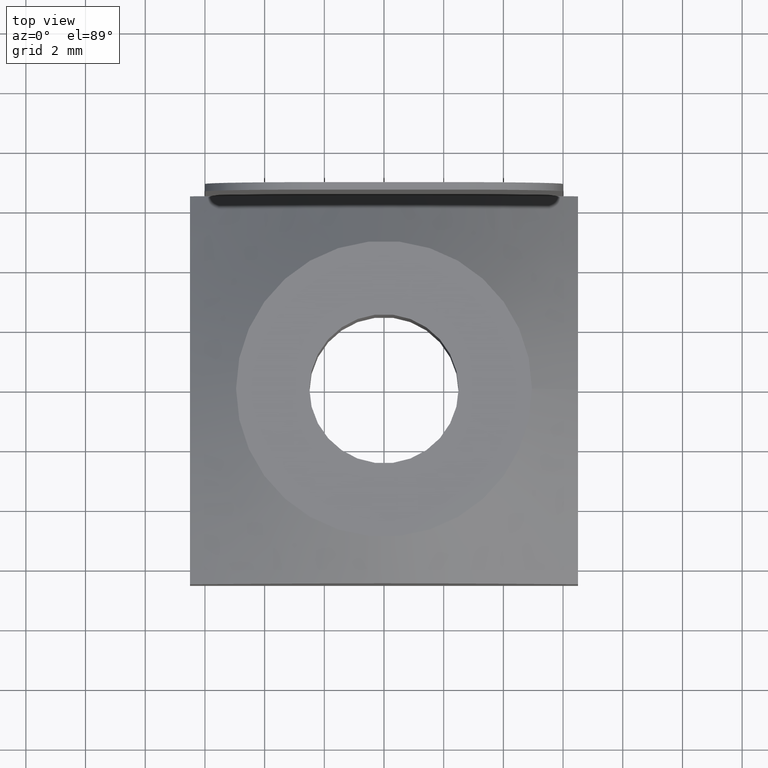
[diagram: clean part render]
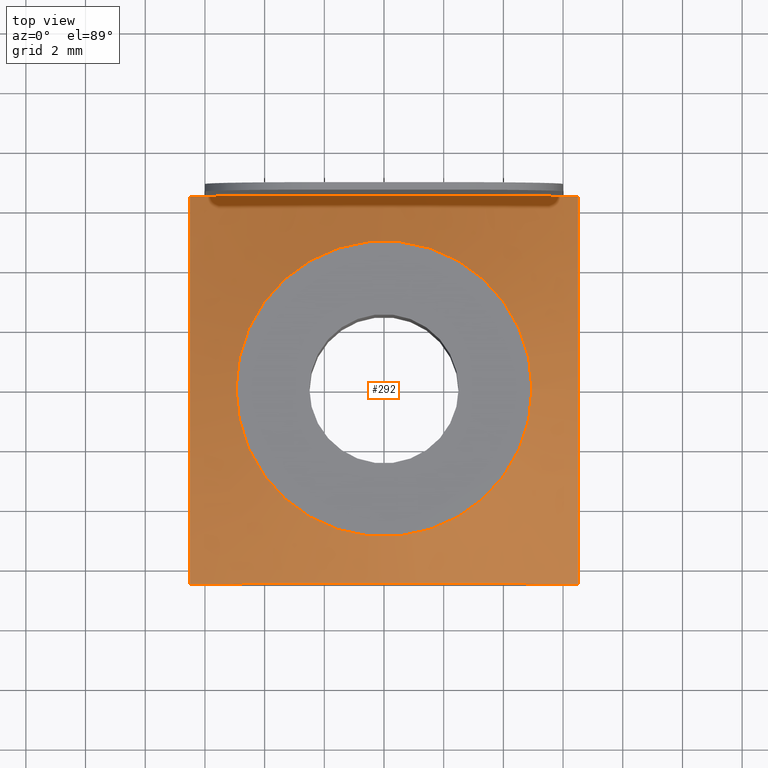
[diagram: same view with one face highlighted and labeled with its STEP entity id]
A machine part, top view. The second image highlights one B-rep face of the part: STEP entity #292.
In plain terms, the highlighted face is a freeform B-spline surface patch.
Its self-contained STEP definition (entity closure, byte-faithful):
#17=CARTESIAN_POINT('',(-6.499999999973852,-6.499999999974079,3.034437679604906));
#18=VERTEX_POINT('',#17);
#25=CARTESIAN_POINT('',(-6.499999999973852,6.499999999974079,3.034437679605066));
#26=VERTEX_POINT('',#25);
#27=CARTESIAN_POINT('',(-6.499999999974079,-6.499999999974079,3.034437679604906));
#28=CARTESIAN_POINT('',(-6.499999999974079,-5.963475184198160,3.300082650377658));
#29=CARTESIAN_POINT('',(-6.499999999974307,-4.990047889132711,3.753273584885370));
#30=CARTESIAN_POINT('',(-6.499999999973625,-3.581020279305903,4.294954268033969));
#31=CARTESIAN_POINT('',(-6.499999999973397,-2.325183673445281,4.659603356991861));
#32=CARTESIAN_POINT('',(-6.499999999974307,-1.114697758100192,4.877442321284693));
#33=CARTESIAN_POINT('',(-6.499999999972943,0.091791976900822,4.946072576401956));
#34=CARTESIAN_POINT('',(-6.499999999977263,1.288091550248737,4.855365513273265));
#35=CARTESIAN_POINT('',(-6.499999999960892,2.551471572318405,4.605479998874939));
#36=CARTESIAN_POINT('',(-6.499999999977263,3.827364189698528,4.209600242583047));
#37=CARTESIAN_POINT('',(-6.499999999973170,5.174177651177615,3.668900488673288));
#38=CARTESIAN_POINT('',(-6.499999999973852,6.048409974866900,3.258029609546425));
#39=CARTESIAN_POINT('',(-6.499999999973852,6.499999999974079,3.034437679605066));
#40=B_SPLINE_CURVE_WITH_KNOTS('',3,(#27,#28,#29,#30,#31,#32,#33,#34,#35,#36,#37,#38,#39),.UNSPECIFIED.,.F.,.U.,(4,1,1,1,1,1,1,1,1,1,4),(0.0,1.796348609622032,3.219266909664040,4.525760464110747,5.714993134358735,6.903296288721289,8.143598724463887,9.306388059167453,10.761381849058354,12.146239828317164,13.658133343956399),.UNSPECIFIED.);
#41=EDGE_CURVE('',#18,#26,#40,.T.);
#65=CARTESIAN_POINT('',(6.499999999974079,-6.499999999974079,3.034437679604906));
#66=VERTEX_POINT('',#65);
#73=CARTESIAN_POINT('',(6.499999999974079,-6.499999999974079,3.034437679604906));
#74=CARTESIAN_POINT('',(5.963475184197932,-6.499999999974079,3.300082650377685));
#75=CARTESIAN_POINT('',(4.990047889131347,-6.499999999974534,3.753273584885145));
#76=CARTESIAN_POINT('',(3.581020279306358,-6.499999999973625,4.294954268034343));
#77=CARTESIAN_POINT('',(2.325183673444599,-6.499999999974989,4.659603356991499));
#78=CARTESIAN_POINT('',(1.114697758099510,-6.499999999973170,4.877442321284664));
#79=CARTESIAN_POINT('',(-0.091791976900140,-6.499999999974989,4.946072576401746));
#80=CARTESIAN_POINT('',(-1.288091550251238,-6.499999999977263,4.855365513273293));
#81=CARTESIAN_POINT('',(-2.551471572318178,-6.499999999962711,4.605479998874193));
#82=CARTESIAN_POINT('',(-3.827364189701029,-6.499999999977717,4.209600242582467));
#83=CARTESIAN_POINT('',(-5.174177651178525,-6.499999999973625,3.668900488673009));
#84=CARTESIAN_POINT('',(-6.048409974867354,-6.499999999974079,3.258029609546086));
#85=CARTESIAN_POINT('',(-6.499999999974079,-6.499999999974079,3.034437679604906));
#86=B_SPLINE_CURVE_WITH_KNOTS('',3,(#73,#74,#75,#76,#77,#78,#79,#80,#81,#82,#83,#84,#85),.UNSPECIFIED.,.F.,.U.,(4,1,1,1,1,1,1,1,1,1,4),(0.0,1.796348609622239,3.219266909664066,4.525760464110903,5.714993134359137,6.903296288721684,8.143598724464722,9.306388059168363,10.761381849059740,12.146239828318263,13.658133343956333),.UNSPECIFIED.);
#87=EDGE_CURVE('',#66,#18,#86,.T.);
#106=CARTESIAN_POINT('',(6.499999999974079,6.499999999974079,3.034437679604906));
#107=VERTEX_POINT('',#106);
#114=CARTESIAN_POINT('',(6.499999999974079,0.0,4.919668161812596));
#115=VERTEX_POINT('',#114);
#116=CARTESIAN_POINT('',(6.499999999974079,6.499999999974079,3.034437679604906));
#117=CARTESIAN_POINT('',(6.499999999974079,5.882877524653850,3.339988284347234));
#118=CARTESIAN_POINT('',(6.499999999974534,4.809413192198008,3.835425012968807));
#119=CARTESIAN_POINT('',(6.499999999973852,3.186651324770082,4.430488239795752));
#120=CARTESIAN_POINT('',(6.499999999974989,1.644250270507200,4.819853950623344));
#121=CARTESIAN_POINT('',(6.499999999974079,0.548660503574865,4.919668161812595));
#122=CARTESIAN_POINT('',(6.499999999974079,0.0,4.919668161812595));
#123=B_SPLINE_CURVE_WITH_KNOTS('',3,(#116,#117,#118,#119,#120,#121,#122),.UNSPECIFIED.,.F.,.U.,(4,1,1,1,4),(0.0,2.066340973610342,3.543609594805800,5.181100455068718,6.829066620924860),.UNSPECIFIED.);
#124=EDGE_CURVE('',#107,#115,#123,.T.);
#126=CARTESIAN_POINT('',(6.499999999974079,0.0,4.919668161812595));
#127=CARTESIAN_POINT('',(6.499999999974079,-0.548660503574865,4.919668161812595));
#128=CARTESIAN_POINT('',(6.499999999974762,-1.644250270504926,4.819853950623344));
#129=CARTESIAN_POINT('',(6.499999999973852,-3.186651324770082,4.430488239795752));
#130=CARTESIAN_POINT('',(6.499999999974534,-4.809413192196644,3.835425012968807));
#131=CARTESIAN_POINT('',(6.499999999974079,-5.882877524653850,3.339988284347234));
#132=CARTESIAN_POINT('',(6.499999999974079,-6.499999999974079,3.034437679604906));
#133=B_SPLINE_CURVE_WITH_KNOTS('',3,(#126,#127,#128,#129,#130,#131,#132),.UNSPECIFIED.,.F.,.U.,(4,1,1,1,4),(0.0,1.647966165856141,3.285457026119058,4.762725647314515,6.829066620924857),.UNSPECIFIED.);
#134=EDGE_CURVE('',#115,#66,#133,.T.);
#146=CARTESIAN_POINT('',(-6.499999999973852,6.499999999974079,3.034437679605066));
#147=CARTESIAN_POINT('',(-6.048409974867354,6.499999999974079,3.258029609546206));
#148=CARTESIAN_POINT('',(-5.174177651177615,6.499999999972715,3.668900488673024));
#149=CARTESIAN_POINT('',(-3.827364189701939,6.499999999976353,4.209600242582472));
#150=CARTESIAN_POINT('',(-2.551471572317269,6.499999999962711,4.605479998874186));
#151=CARTESIAN_POINT('',(-1.288091550251011,6.499999999977263,4.855365513273293));
#152=CARTESIAN_POINT('',(-0.091791976899913,6.499999999974534,4.946072576401746));
#153=CARTESIAN_POINT('',(1.114697758099283,6.499999999973170,4.877442321284664));
#154=CARTESIAN_POINT('',(2.325183673445054,6.499999999974989,4.659603356991500));
#155=CARTESIAN_POINT('',(3.581020279306813,6.499999999974079,4.294954268034344));
#156=CARTESIAN_POINT('',(4.990047889131802,6.499999999974534,3.753273584885147));
#157=CARTESIAN_POINT('',(5.963475184197932,6.499999999974079,3.300082650377685));
#158=CARTESIAN_POINT('',(6.499999999974079,6.499999999974079,3.034437679604906));
#159=B_SPLINE_CURVE_WITH_KNOTS('',3,(#146,#147,#148,#149,#150,#151,#152,#153,#154,#155,#156,#157,#158),.UNSPECIFIED.,.F.,.U.,(4,1,1,1,1,1,1,1,1,1,4),(0.0,1.511893515637792,2.896751494896321,4.351745284787702,5.514534619491342,6.754837055234381,7.943140209596928,9.132372879845162,10.438866434292001,11.861784734333828,13.658133343956067),.UNSPECIFIED.);
#160=EDGE_CURVE('',#26,#107,#159,.T.);
#177=CARTESIAN_POINT('',(-4.957126238646652,0.0,6.0));
#178=VERTEX_POINT('',#177);
#179=CARTESIAN_POINT('',(4.957126238646652,0.0,6.0));
#180=VERTEX_POINT('',#179);
#181=CARTESIAN_POINT('',(0.0,0.0,6.0));
#182=DIRECTION('',(0.0,0.0,-1.0));
#183=DIRECTION('',(1.0,0.0,0.0));
#184=AXIS2_PLACEMENT_3D('',#181,#182,#183);
#185=CIRCLE('',#184,4.957126238646652);
#186=EDGE_CURVE('',#178,#180,#185,.T.);
#188=CARTESIAN_POINT('',(0.0,0.0,6.0));
#189=DIRECTION('',(0.0,0.0,-1.0));
#190=DIRECTION('',(1.0,0.0,0.0));
#191=AXIS2_PLACEMENT_3D('',#188,#189,#190);
#192=CIRCLE('',#191,4.957126238646652);
#193=EDGE_CURVE('',#180,#178,#192,.T.);
#250=CARTESIAN_POINT('',(4.957126238621409,0.0,6.000000000017701));
#251=CARTESIAN_POINT('',(4.957126238621409,4.957126238621409,6.000000000017701));
#252=CARTESIAN_POINT('',(0.0,4.957126238621409,6.000000000017701));
#253=CARTESIAN_POINT('',(-4.957126238621409,4.957126238621409,6.000000000017701));
#254=CARTESIAN_POINT('',(-4.957126238621409,0.0,6.000000000017701));
#255=CARTESIAN_POINT('',(-4.957126238621409,-4.957126238621409,6.000000000017701));
#256=CARTESIAN_POINT('',(0.0,-4.957126238621409,6.000000000017701));
#257=CARTESIAN_POINT('',(4.957126238621409,-4.957126238621409,6.000000000017701));
#258=CARTESIAN_POINT('',(4.957126238621409,0.0,6.000000000017701));
#259=CARTESIAN_POINT('',(9.192391315225684,0.0,3.034435467063071));
#260=CARTESIAN_POINT('',(9.192391315225684,9.192391315225684,3.034435467063072));
#261=CARTESIAN_POINT('',(0.0,9.192391315225684,3.034435467063071));
#262=CARTESIAN_POINT('',(-9.192391315225684,9.192391315225684,3.034435467063072));
#263=CARTESIAN_POINT('',(-9.192391315225684,0.0,3.034435467063071));
#264=CARTESIAN_POINT('',(-9.192391315225684,-9.192391315225684,3.034435467063072));
#265=CARTESIAN_POINT('',(0.0,-9.192391315225684,3.034435467063071));
#266=CARTESIAN_POINT('',(9.192391315225684,-9.192391315225684,3.034435467063072));
#267=CARTESIAN_POINT('',(9.192391315225684,0.0,3.034435467063071));
#275=(BOUNDED_SURFACE()B_SPLINE_SURFACE(2,1,((#250,#259),(#251,#260),(#252,#261),(#253,#262),(#254,#263),(#255,#264),(#256,#265),(#257,#266),(#258,#267)),.UNSPECIFIED.,.T.,.F.,.U.)B_SPLINE_SURFACE_WITH_KNOTS((3,2,2,2,3),(2,2),(0.0,0.250000000000000,0.500000000000000,0.750000000000000,1.0),(-6.833350498853780,-1.663046516666443),.UNSPECIFIED.)GEOMETRIC_REPRESENTATION_ITEM()RATIONAL_B_SPLINE_SURFACE(((1.0,1.0),(0.707106781186548,0.707106781186548),(1.0,1.0),(0.707106781186548,0.707106781186548),(1.0,1.0),(0.707106781186548,0.707106781186548),(1.0,1.0),(0.707106781186548,0.707106781186548),(1.0,1.0)))REPRESENTATION_ITEM('')SURFACE());
#276=ORIENTED_EDGE('',*,*,#160,.F.);
#277=ORIENTED_EDGE('',*,*,#41,.F.);
#278=ORIENTED_EDGE('',*,*,#87,.F.);
#279=ORIENTED_EDGE('',*,*,#134,.F.);
#280=CARTESIAN_POINT('',(4.957126238646688,0.0,6.0));
#281=DIRECTION('',(0.819152044288992,0.0,-0.573576436351045));
#282=VECTOR('',#281,1.883501081495284);
#283=LINE('',#280,#282);
#284=EDGE_CURVE('',#180,#115,#283,.T.);
#285=ORIENTED_EDGE('',*,*,#284,.F.);
#286=ORIENTED_EDGE('',*,*,#193,.T.);
#287=ORIENTED_EDGE('',*,*,#186,.T.);
#288=ORIENTED_EDGE('',*,*,#284,.T.);
#289=ORIENTED_EDGE('',*,*,#124,.F.);
#290=EDGE_LOOP('',(#276,#277,#278,#279,#285,#286,#287,#288,#289));
#291=FACE_OUTER_BOUND('',#290,.T.);
#292=ADVANCED_FACE('',(#291),#275,.F.);